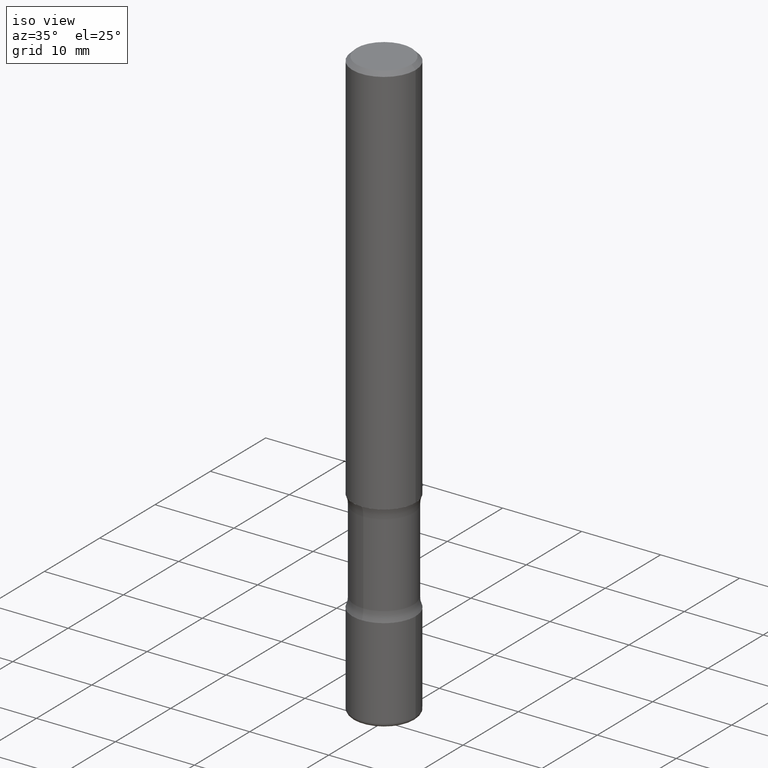
[diagram: clean part render]
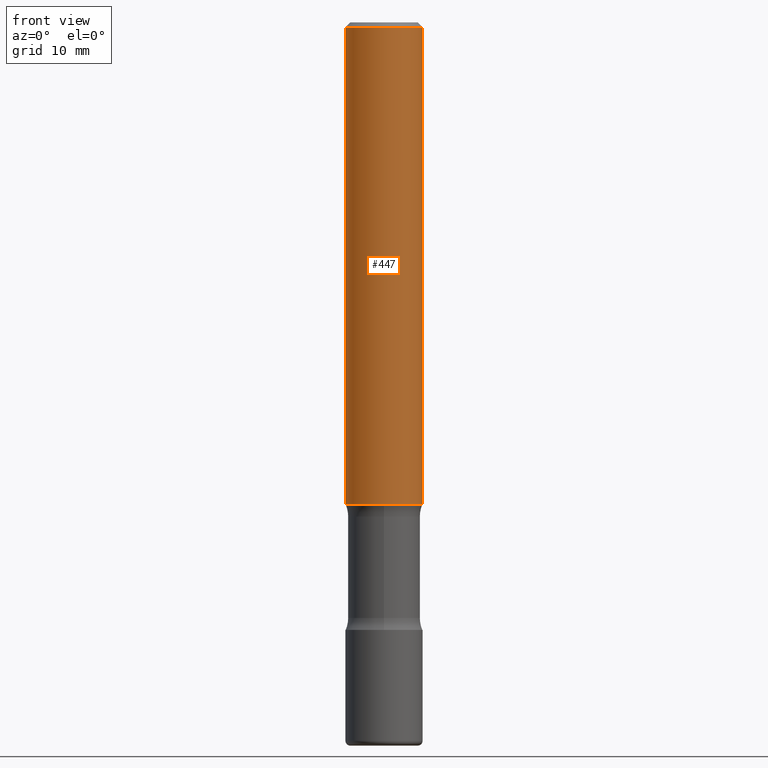
[diagram: tour spotlight — one face highlighted and labeled with its STEP entity id]
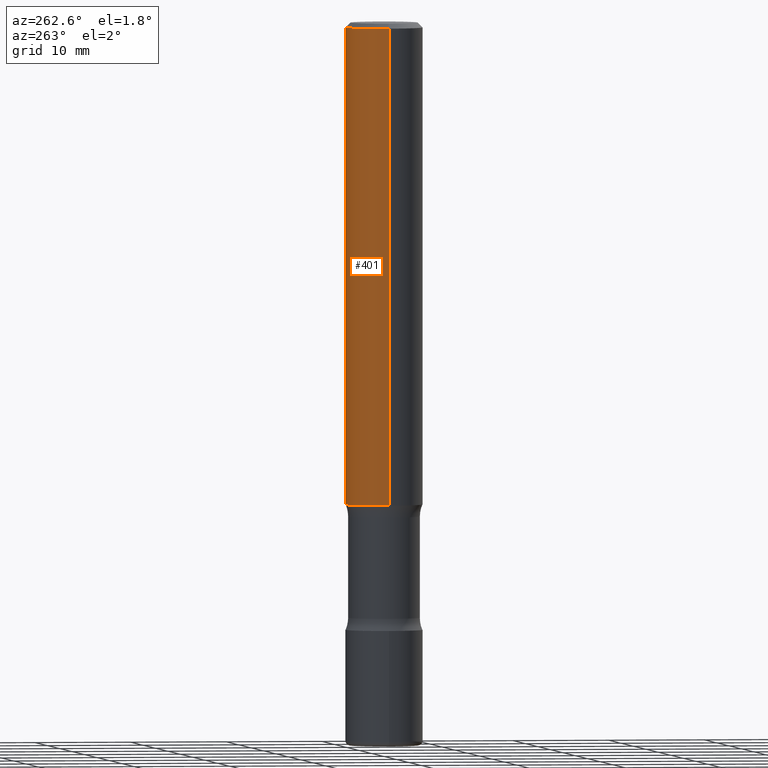
[diagram: tour spotlight — one face highlighted and labeled with its STEP entity id]
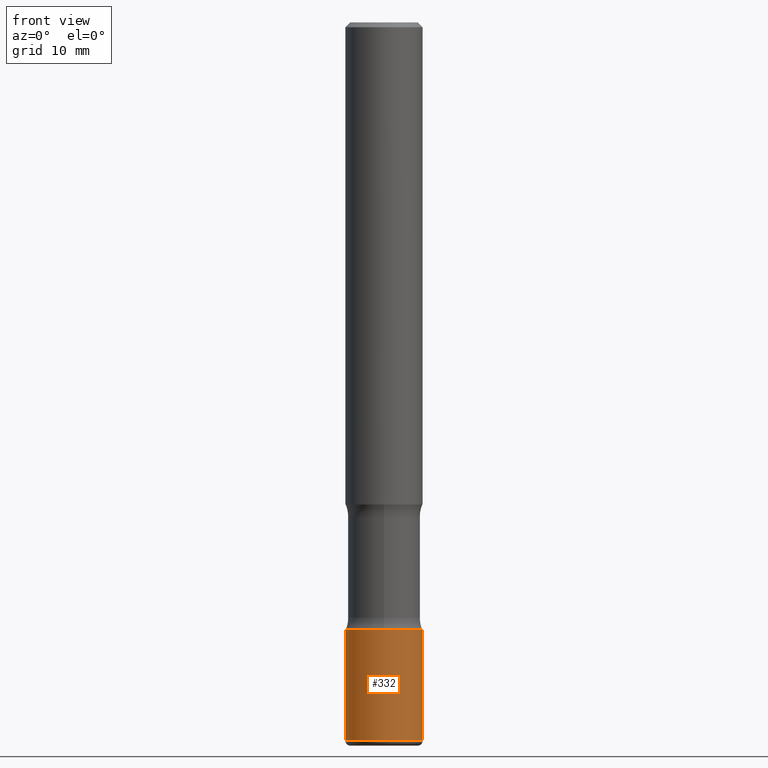
[diagram: tour spotlight — one face highlighted and labeled with its STEP entity id]
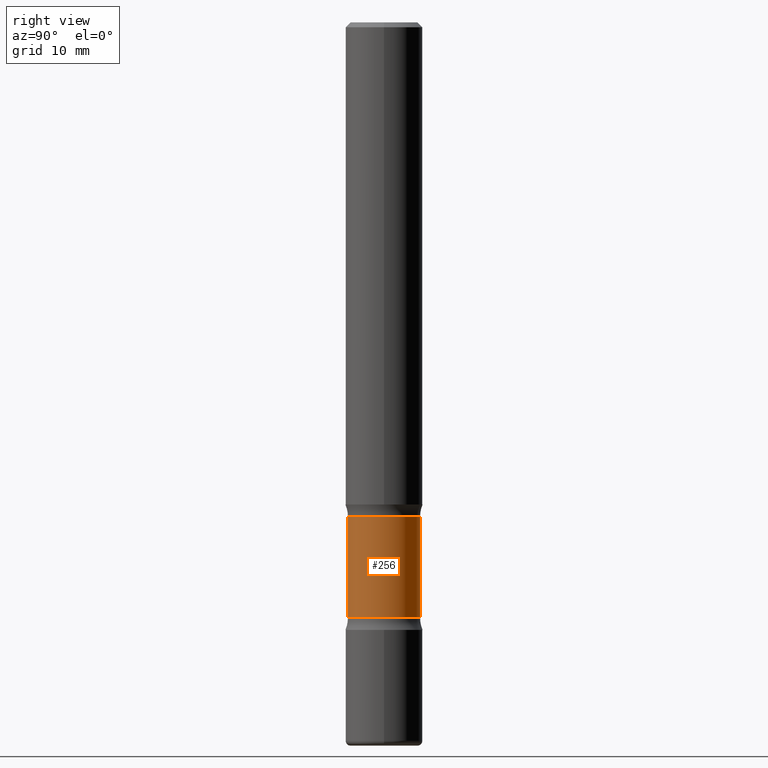
[diagram: tour spotlight — one face highlighted and labeled with its STEP entity id]
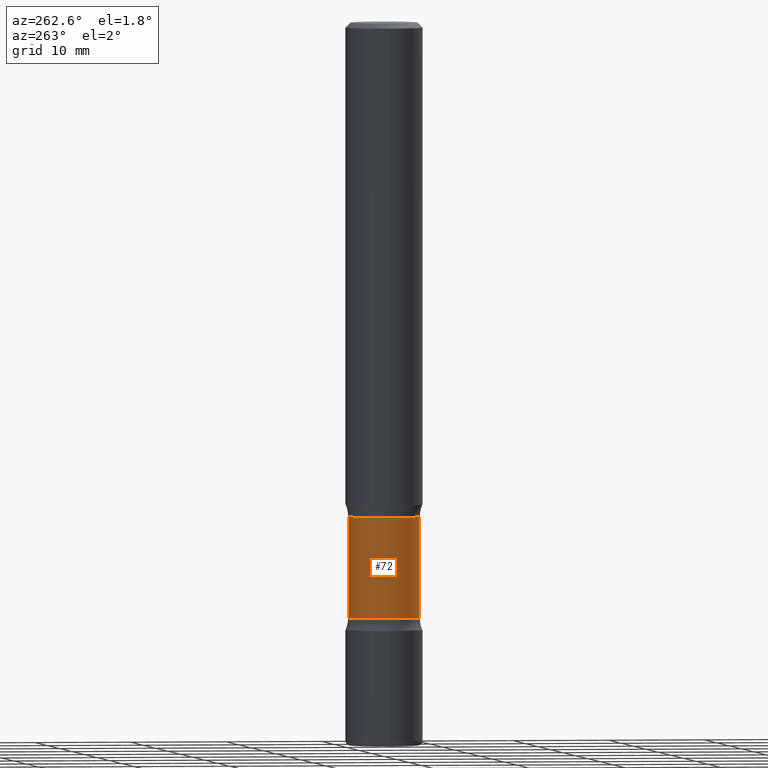
[diagram: tour spotlight — one face highlighted and labeled with its STEP entity id]
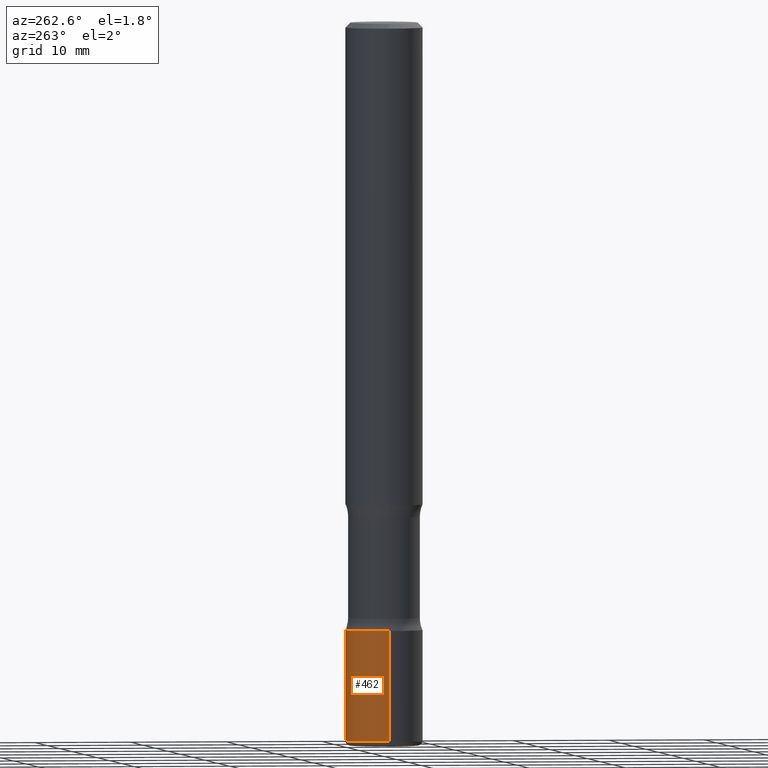
[diagram: tour spotlight — one face highlighted and labeled with its STEP entity id]
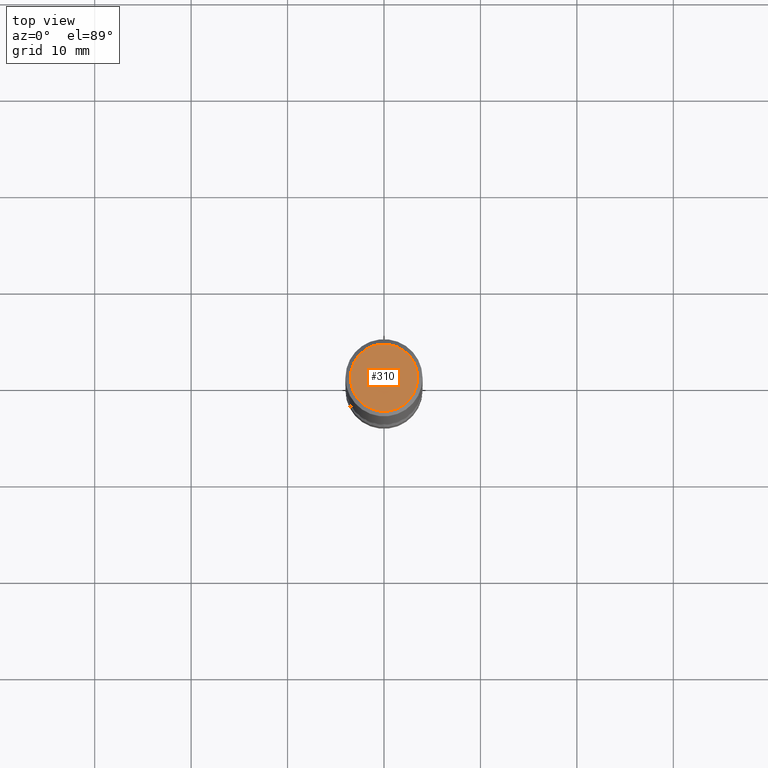
[diagram: tour spotlight — one face highlighted and labeled with its STEP entity id]
A machine part: a face-by-face anatomy tour. The part has 20 B-rep faces; the first image is the clean iso view, then the 7 largest visible faces are spotlighted one at a time (largest first), each with its STEP entity span.

Face 1 — front view, entity #447. In plain terms, the highlighted cylindrical surface (partial cylindrical patch) has radius 4.0005 mm, axis along (-0, 0, 1).
Definition (entity closure, byte-faithful):
#3 = ORIENTED_EDGE ( 'NONE', *, *, #345, .T. ) ;
#18 = ORIENTED_EDGE ( 'NONE', *, *, #22, .F. ) ;
#22 = EDGE_CURVE ( 'NONE', #390, #161, #194, .T. ) ;
#23 = ORIENTED_EDGE ( 'NONE', *, *, #426, .F. ) ;
#28 = VERTEX_POINT ( 'NONE', #61 ) ;
#31 = VECTOR ( 'NONE', #102, 39.37007874015748143 ) ;
#35 = CARTESIAN_POINT ( 'NONE',  ( -0.1574999999999999178, 1.029986994958723590E-15, -0.02000000000000000042 ) ) ;
#61 = CARTESIAN_POINT ( 'NONE',  ( 0.1574999999999999178, -1.150358061425878486E-15, -0.02000000000000000042 ) ) ;
#94 = EDGE_CURVE ( 'NONE', #98, #28, #182, .T. ) ;
#98 = VERTEX_POINT ( 'NONE', #392 ) ;
#102 = DIRECTION ( 'NONE',  ( -2.445468806185136877E-29, 3.491481338843145188E-15, 1.000000000000000000 ) ) ;
#128 = CARTESIAN_POINT ( 'NONE',  ( 4.890937612370273159E-31, -6.982962677686291609E-17, -0.02000000000000000042 ) ) ;
#135 = CYLINDRICAL_SURFACE ( 'NONE', #148, 0.1575000000000000289 ) ;
#147 = VECTOR ( 'NONE', #438, 39.37007874015748143 ) ;
#148 = AXIS2_PLACEMENT_3D ( 'NONE', #440, #230, #234 ) ;
#151 = DIRECTION ( 'NONE',  ( 1.000000000000000000, -6.982962677686267499E-15, 0.000000000000000000 ) ) ;
#161 = VERTEX_POINT ( 'NONE', #35 ) ;
#177 = FACE_OUTER_BOUND ( 'NONE', #302, .T. ) ;
#182 = LINE ( 'NONE', #490, #31 ) ;
#186 = CARTESIAN_POINT ( 'NONE',  ( -0.1575000000000000289, 1.119104808822157998E-15, -7.747322767151478386E-30 ) ) ;
#194 = LINE ( 'NONE', #186, #147 ) ;
#230 = DIRECTION ( 'NONE',  ( -2.445468806185136597E-29, 3.491481338843145583E-15, 1.000000000000000000 ) ) ;
#234 = DIRECTION ( 'NONE',  ( 1.000000000000000000, -6.982962677686267499E-15, 4.876176775795935232E-29 ) ) ;
#236 = ORIENTED_EDGE ( 'NONE', *, *, #94, .T. ) ;
#239 = CIRCLE ( 'NONE', #290, 0.1574999999999999178 ) ;
#290 = AXIS2_PLACEMENT_3D ( 'NONE', #128, #388, #520 ) ;
#302 = EDGE_LOOP ( 'NONE', ( #18, #3, #236, #23 ) ) ;
#345 = EDGE_CURVE ( 'NONE', #390, #98, #378, .T. ) ;
#353 = DIRECTION ( 'NONE',  ( -2.445468806185136597E-29, 3.491481338843145583E-15, 1.000000000000000000 ) ) ;
#364 = CARTESIAN_POINT ( 'NONE',  ( -0.1575000000000001676, -2.352300512322635166E-15, -1.968499999999999694 ) ) ;
#378 = CIRCLE ( 'NONE', #491, 0.1575000000000001676 ) ;
#388 = DIRECTION ( 'NONE',  ( -2.445468806185136597E-29, 3.491481338843145583E-15, 1.000000000000000000 ) ) ;
#390 = VERTEX_POINT ( 'NONE', #364 ) ;
#392 = CARTESIAN_POINT ( 'NONE',  ( 0.1575000000000001676, -7.972797637248319976E-15, -1.968499999999999694 ) ) ;
#426 = EDGE_CURVE ( 'NONE', #161, #28, #239, .T. ) ;
#438 = DIRECTION ( 'NONE',  ( -2.445468806185136877E-29, 3.491481338843145188E-15, 1.000000000000000000 ) ) ;
#440 = CARTESIAN_POINT ( 'NONE',  ( 0.000000000000000000, 0.000000000000000000, 0.000000000000000000 ) ) ;
#447 = ADVANCED_FACE ( 'NONE', ( #177 ), #135, .T. ) ;
#459 = CARTESIAN_POINT ( 'NONE',  ( 4.813905344975440714E-29, -6.872981015512730918E-15, -1.968499999999999694 ) ) ;
#490 = CARTESIAN_POINT ( 'NONE',  ( 0.1575000000000000289, -1.099816621735587283E-15, 7.679978421878599434E-30 ) ) ;
#491 = AXIS2_PLACEMENT_3D ( 'NONE', #459, #353, #151 ) ;
#520 = DIRECTION ( 'NONE',  ( 1.000000000000000000, -6.982962677686266711E-15, 0.000000000000000000 ) ) ;

Face 2 — auxiliary view, entity #401. In plain terms, the highlighted cylindrical surface (partial cylindrical patch) has radius 4.0005 mm, axis along (-0, 0, 1).
Definition (entity closure, byte-faithful):
#22 = EDGE_CURVE ( 'NONE', #390, #161, #194, .T. ) ;
#24 = CIRCLE ( 'NONE', #79, 0.1575000000000001676 ) ;
#27 = DIRECTION ( 'NONE',  ( 1.000000000000000000, -6.982962677686267499E-15, 0.000000000000000000 ) ) ;
#28 = VERTEX_POINT ( 'NONE', #61 ) ;
#31 = VECTOR ( 'NONE', #102, 39.37007874015748143 ) ;
#35 = CARTESIAN_POINT ( 'NONE',  ( -0.1574999999999999178, 1.029986994958723590E-15, -0.02000000000000000042 ) ) ;
#49 = EDGE_LOOP ( 'NONE', ( #476, #202, #414, #439 ) ) ;
#61 = CARTESIAN_POINT ( 'NONE',  ( 0.1574999999999999178, -1.150358061425878486E-15, -0.02000000000000000042 ) ) ;
#66 = CIRCLE ( 'NONE', #336, 0.1574999999999999178 ) ;
#75 = DIRECTION ( 'NONE',  ( -2.445468806185136597E-29, 3.491481338843145583E-15, 1.000000000000000000 ) ) ;
#79 = AXIS2_PLACEMENT_3D ( 'NONE', #142, #488, #27 ) ;
#94 = EDGE_CURVE ( 'NONE', #98, #28, #182, .T. ) ;
#98 = VERTEX_POINT ( 'NONE', #392 ) ;
#102 = DIRECTION ( 'NONE',  ( -2.445468806185136877E-29, 3.491481338843145188E-15, 1.000000000000000000 ) ) ;
#113 = DIRECTION ( 'NONE',  ( -2.445468806185136597E-29, 3.491481338843145583E-15, 1.000000000000000000 ) ) ;
#142 = CARTESIAN_POINT ( 'NONE',  ( 4.813905344975440714E-29, -6.872981015512730918E-15, -1.968499999999999694 ) ) ;
#147 = VECTOR ( 'NONE', #438, 39.37007874015748143 ) ;
#161 = VERTEX_POINT ( 'NONE', #35 ) ;
#182 = LINE ( 'NONE', #490, #31 ) ;
#186 = CARTESIAN_POINT ( 'NONE',  ( -0.1575000000000000289, 1.119104808822157998E-15, -7.747322767151478386E-30 ) ) ;
#194 = LINE ( 'NONE', #186, #147 ) ;
#202 = ORIENTED_EDGE ( 'NONE', *, *, #22, .T. ) ;
#280 = DIRECTION ( 'NONE',  ( 1.000000000000000000, -6.982962677686266711E-15, 0.000000000000000000 ) ) ;
#334 = EDGE_CURVE ( 'NONE', #28, #161, #66, .T. ) ;
#336 = AXIS2_PLACEMENT_3D ( 'NONE', #535, #113, #280 ) ;
#364 = CARTESIAN_POINT ( 'NONE',  ( -0.1575000000000001676, -2.352300512322635166E-15, -1.968499999999999694 ) ) ;
#369 = AXIS2_PLACEMENT_3D ( 'NONE', #380, #75, #430 ) ;
#372 = EDGE_CURVE ( 'NONE', #98, #390, #24, .T. ) ;
#380 = CARTESIAN_POINT ( 'NONE',  ( 0.000000000000000000, 0.000000000000000000, 0.000000000000000000 ) ) ;
#390 = VERTEX_POINT ( 'NONE', #364 ) ;
#392 = CARTESIAN_POINT ( 'NONE',  ( 0.1575000000000001676, -7.972797637248319976E-15, -1.968499999999999694 ) ) ;
#401 = ADVANCED_FACE ( 'NONE', ( #418 ), #554, .T. ) ;
#414 = ORIENTED_EDGE ( 'NONE', *, *, #334, .F. ) ;
#418 = FACE_OUTER_BOUND ( 'NONE', #49, .T. ) ;
#430 = DIRECTION ( 'NONE',  ( 1.000000000000000000, -6.982962677686267499E-15, 4.876176775795935232E-29 ) ) ;
#438 = DIRECTION ( 'NONE',  ( -2.445468806185136877E-29, 3.491481338843145188E-15, 1.000000000000000000 ) ) ;
#439 = ORIENTED_EDGE ( 'NONE', *, *, #94, .F. ) ;
#476 = ORIENTED_EDGE ( 'NONE', *, *, #372, .T. ) ;
#488 = DIRECTION ( 'NONE',  ( -2.445468806185136597E-29, 3.491481338843145583E-15, 1.000000000000000000 ) ) ;
#490 = CARTESIAN_POINT ( 'NONE',  ( 0.1575000000000000289, -1.099816621735587283E-15, 7.679978421878599434E-30 ) ) ;
#535 = CARTESIAN_POINT ( 'NONE',  ( 4.890937612370273159E-31, -6.982962677686291609E-17, -0.02000000000000000042 ) ) ;
#554 = CYLINDRICAL_SURFACE ( 'NONE', #369, 0.1575000000000000289 ) ;

Face 3 — front view, entity #332. In plain terms, the highlighted cylindrical surface (partial cylindrical patch) has radius 4.0005 mm, axis along (-0, 0, 1).
Definition (entity closure, byte-faithful):
#13 = EDGE_CURVE ( 'NONE', #525, #466, #244, .T. ) ;
#16 = ORIENTED_EDGE ( 'NONE', *, *, #13, .T. ) ;
#20 = VECTOR ( 'NONE', #104, 39.37007874015748143 ) ;
#25 = DIRECTION ( 'NONE',  ( 1.000000000000000000, -6.982962677686265922E-15, 4.876176775795935232E-29 ) ) ;
#38 = EDGE_CURVE ( 'NONE', #525, #215, #58, .T. ) ;
#58 = LINE ( 'NONE', #131, #424 ) ;
#104 = DIRECTION ( 'NONE',  ( -2.445468806185136877E-29, 3.491481338843145188E-15, 1.000000000000000000 ) ) ;
#117 = CARTESIAN_POINT ( 'NONE',  ( 0.1575000000000001399, -1.099816621735587875E-15, 7.679978421878605039E-30 ) ) ;
#131 = CARTESIAN_POINT ( 'NONE',  ( -0.1575000000000001399, 1.119104808822158787E-15, -7.747322767151482590E-30 ) ) ;
#138 = ORIENTED_EDGE ( 'NONE', *, *, #301, .T. ) ;
#140 = EDGE_LOOP ( 'NONE', ( #458, #16, #138, #278 ) ) ;
#191 = DIRECTION ( 'NONE',  ( -2.445468806185136597E-29, 3.491481338843145583E-15, 1.000000000000000000 ) ) ;
#211 = CARTESIAN_POINT ( 'NONE',  ( -0.1575000000000000844, -9.121759106138672895E-15, -2.933100000000000041 ) ) ;
#215 = VERTEX_POINT ( 'NONE', #376 ) ;
#226 = DIRECTION ( 'NONE',  ( 1.000000000000000000, -6.982962677686268288E-15, 0.000000000000000000 ) ) ;
#231 = CARTESIAN_POINT ( 'NONE',  ( 7.172804555421624566E-29, -1.024086391496083050E-14, -2.933100000000000041 ) ) ;
#244 = CIRCLE ( 'NONE', #303, 0.1575000000000001399 ) ;
#248 = CIRCLE ( 'NONE', #434, 0.1575000000000001399 ) ;
#278 = ORIENTED_EDGE ( 'NONE', *, *, #442, .F. ) ;
#301 = EDGE_CURVE ( 'NONE', #466, #514, #493, .T. ) ;
#303 = AXIS2_PLACEMENT_3D ( 'NONE', #231, #532, #322 ) ;
#321 = DIRECTION ( 'NONE',  ( -2.445468806185136597E-29, 3.491481338843145583E-15, 1.000000000000000000 ) ) ;
#322 = DIRECTION ( 'NONE',  ( 1.000000000000000000, -6.982962677686268288E-15, 0.000000000000000000 ) ) ;
#332 = ADVANCED_FACE ( 'NONE', ( #496 ), #403, .T. ) ;
#376 = CARTESIAN_POINT ( 'NONE',  ( -0.1575000000000001399, -8.331462305091523914E-15, -2.480399999999999494 ) ) ;
#403 = CYLINDRICAL_SURFACE ( 'NONE', #552, 0.1575000000000001399 ) ;
#424 = VECTOR ( 'NONE', #486, 39.37007874015748143 ) ;
#434 = AXIS2_PLACEMENT_3D ( 'NONE', #451, #321, #226 ) ;
#442 = EDGE_CURVE ( 'NONE', #215, #514, #248, .T. ) ;
#444 = CARTESIAN_POINT ( 'NONE',  ( 0.1575000000000000844, -1.134068053669641877E-14, -2.933100000000000041 ) ) ;
#450 = CARTESIAN_POINT ( 'NONE',  ( 0.000000000000000000, 0.000000000000000000, 0.000000000000000000 ) ) ;
#451 = CARTESIAN_POINT ( 'NONE',  ( 6.065740826861612418E-29, -8.660270312866537270E-15, -2.480399999999999494 ) ) ;
#458 = ORIENTED_EDGE ( 'NONE', *, *, #38, .F. ) ;
#466 = VERTEX_POINT ( 'NONE', #444 ) ;
#486 = DIRECTION ( 'NONE',  ( -2.445468806185136877E-29, 3.491481338843145188E-15, 1.000000000000000000 ) ) ;
#493 = LINE ( 'NONE', #117, #20 ) ;
#496 = FACE_OUTER_BOUND ( 'NONE', #140, .T. ) ;
#501 = CARTESIAN_POINT ( 'NONE',  ( 0.1575000000000001399, -9.760086934602125539E-15, -2.480399999999999494 ) ) ;
#514 = VERTEX_POINT ( 'NONE', #501 ) ;
#525 = VERTEX_POINT ( 'NONE', #211 ) ;
#532 = DIRECTION ( 'NONE',  ( -2.445468806185136597E-29, 3.491481338843145583E-15, 1.000000000000000000 ) ) ;
#552 = AXIS2_PLACEMENT_3D ( 'NONE', #450, #191, #25 ) ;

Face 4 — right view, entity #256. In plain terms, the highlighted cylindrical surface (edge-blend (fillet) strip) has radius 3.7427 mm, axis along (0, -0, -1).
Definition (entity closure, byte-faithful):
#33 = VERTEX_POINT ( 'NONE', #137 ) ;
#39 = CARTESIAN_POINT ( 'NONE',  ( 7.234878300801473340E-29, -1.028974335613649852E-14, -2.952799999999999869 ) ) ;
#46 = EDGE_CURVE ( 'NONE', #464, #133, #264, .T. ) ;
#59 = DIRECTION ( 'NONE',  ( 2.474888810202925163E-29, -3.449350218607032856E-15, -1.000000000000000000 ) ) ;
#63 = DIRECTION ( 'NONE',  ( 2.474888810202925163E-29, -3.449350218607033250E-15, -1.000000000000000000 ) ) ;
#65 = CARTESIAN_POINT ( 'NONE',  ( 1.028939550557143658E-15, 0.1473499999999897114, -2.952800000000000313 ) ) ;
#133 = VERTEX_POINT ( 'NONE', #261 ) ;
#137 = CARTESIAN_POINT ( 'NONE',  ( 1.028939550557130839E-15, 0.1473499999999915433, -2.431059575397043648 ) ) ;
#146 = LINE ( 'NONE', #65, #543 ) ;
#155 = CARTESIAN_POINT ( 'NONE',  ( 1.028939550557120386E-15, 0.1473499999999929033, -2.017840424602956872 ) ) ;
#180 = VECTOR ( 'NONE', #304, 39.37007874015748143 ) ;
#188 = DIRECTION ( 'NONE',  ( 6.982962677686265133E-15, 1.000000000000000000, -3.707971487837479733E-15 ) ) ;
#190 = ORIENTED_EDGE ( 'NONE', *, *, #46, .T. ) ;
#209 = EDGE_CURVE ( 'NONE', #312, #464, #359, .T. ) ;
#233 = CARTESIAN_POINT ( 'NONE',  ( 5.943628762121094077E-29, -8.490077908476165751E-15, -2.431059575397043204 ) ) ;
#246 = CYLINDRICAL_SURFACE ( 'NONE', #254, 0.1473500000000000087 ) ;
#254 = AXIS2_PLACEMENT_3D ( 'NONE', #39, #63, #188 ) ;
#256 = ADVANCED_FACE ( 'NONE', ( #468 ), #246, .T. ) ;
#261 = CARTESIAN_POINT ( 'NONE',  ( -1.045711407310266063E-15, -0.1473500000000085020, -2.431059575397042760 ) ) ;
#264 = LINE ( 'NONE', #452, #180 ) ;
#268 = CARTESIAN_POINT ( 'NONE',  ( -1.045711407310277305E-15, -0.1473500000000070587, -2.017840424602955984 ) ) ;
#270 = ORIENTED_EDGE ( 'NONE', *, *, #286, .F. ) ;
#281 = DIRECTION ( 'NONE',  ( 2.474888810202925163E-29, -3.449350218607033250E-15, -1.000000000000000000 ) ) ;
#283 = DIRECTION ( 'NONE',  ( 6.982962677686265133E-15, 1.000000000000000000, -3.707971487837480522E-15 ) ) ;
#286 = EDGE_CURVE ( 'NONE', #33, #133, #455, .T. ) ;
#287 = EDGE_CURVE ( 'NONE', #312, #33, #146, .T. ) ;
#304 = DIRECTION ( 'NONE',  ( 2.474888810202925163E-29, -3.449350218607032856E-15, -1.000000000000000000 ) ) ;
#312 = VERTEX_POINT ( 'NONE', #155 ) ;
#313 = DIRECTION ( 'NONE',  ( 2.474888810202925163E-29, -3.449350218607033250E-15, -1.000000000000000000 ) ) ;
#317 = ORIENTED_EDGE ( 'NONE', *, *, #287, .F. ) ;
#326 = DIRECTION ( 'NONE',  ( 6.982962677686266711E-15, 1.000000000000000000, -3.707971487837479733E-15 ) ) ;
#359 = CIRCLE ( 'NONE', #368, 0.1473499999999999810 ) ;
#368 = AXIS2_PLACEMENT_3D ( 'NONE', #500, #281, #283 ) ;
#405 = AXIS2_PLACEMENT_3D ( 'NONE', #233, #313, #326 ) ;
#452 = CARTESIAN_POINT ( 'NONE',  ( -1.010894379971562693E-15, -0.1473500000000103061, -2.952799999999998981 ) ) ;
#455 = CIRCLE ( 'NONE', #405, 0.1473500000000000087 ) ;
#464 = VERTEX_POINT ( 'NONE', #268 ) ;
#468 = FACE_OUTER_BOUND ( 'NONE', #492, .T. ) ;
#492 = EDGE_LOOP ( 'NONE', ( #515, #190, #270, #317 ) ) ;
#500 = CARTESIAN_POINT ( 'NONE',  ( 4.920957309659253149E-29, -7.064740340351969652E-15, -2.017840424602956428 ) ) ;
#515 = ORIENTED_EDGE ( 'NONE', *, *, #209, .T. ) ;
#543 = VECTOR ( 'NONE', #59, 39.37007874015748143 ) ;

Face 5 — auxiliary view, entity #72. In plain terms, the highlighted cylindrical surface (edge-blend (fillet) strip) has radius 3.7427 mm, axis along (0, -0, -1).
Definition (entity closure, byte-faithful):
#6 = DIRECTION ( 'NONE',  ( 2.474888810202925163E-29, -3.449350218607033250E-15, -1.000000000000000000 ) ) ;
#17 = EDGE_LOOP ( 'NONE', ( #189, #435, #331, #509 ) ) ;
#33 = VERTEX_POINT ( 'NONE', #137 ) ;
#46 = EDGE_CURVE ( 'NONE', #464, #133, #264, .T. ) ;
#59 = DIRECTION ( 'NONE',  ( 2.474888810202925163E-29, -3.449350218607032856E-15, -1.000000000000000000 ) ) ;
#65 = CARTESIAN_POINT ( 'NONE',  ( 1.028939550557143658E-15, 0.1473499999999897114, -2.952800000000000313 ) ) ;
#69 = DIRECTION ( 'NONE',  ( 2.474888810202925163E-29, -3.449350218607033250E-15, -1.000000000000000000 ) ) ;
#72 = ADVANCED_FACE ( 'NONE', ( #352 ), #389, .T. ) ;
#83 = CIRCLE ( 'NONE', #167, 0.1473499999999999810 ) ;
#89 = AXIS2_PLACEMENT_3D ( 'NONE', #529, #6, #400 ) ;
#96 = EDGE_CURVE ( 'NONE', #464, #312, #83, .T. ) ;
#133 = VERTEX_POINT ( 'NONE', #261 ) ;
#134 = CIRCLE ( 'NONE', #533, 0.1473500000000000087 ) ;
#137 = CARTESIAN_POINT ( 'NONE',  ( 1.028939550557130839E-15, 0.1473499999999915433, -2.431059575397043648 ) ) ;
#146 = LINE ( 'NONE', #65, #543 ) ;
#149 = CARTESIAN_POINT ( 'NONE',  ( 4.920957309659253149E-29, -7.064740340351969652E-15, -2.017840424602956428 ) ) ;
#155 = CARTESIAN_POINT ( 'NONE',  ( 1.028939550557120386E-15, 0.1473499999999929033, -2.017840424602956872 ) ) ;
#167 = AXIS2_PLACEMENT_3D ( 'NONE', #149, #325, #295 ) ;
#180 = VECTOR ( 'NONE', #304, 39.37007874015748143 ) ;
#189 = ORIENTED_EDGE ( 'NONE', *, *, #46, .F. ) ;
#261 = CARTESIAN_POINT ( 'NONE',  ( -1.045711407310266063E-15, -0.1473500000000085020, -2.431059575397042760 ) ) ;
#264 = LINE ( 'NONE', #452, #180 ) ;
#268 = CARTESIAN_POINT ( 'NONE',  ( -1.045711407310277305E-15, -0.1473500000000070587, -2.017840424602955984 ) ) ;
#282 = CARTESIAN_POINT ( 'NONE',  ( 5.943628762121094077E-29, -8.490077908476165751E-15, -2.431059575397043204 ) ) ;
#287 = EDGE_CURVE ( 'NONE', #312, #33, #146, .T. ) ;
#295 = DIRECTION ( 'NONE',  ( 6.982962677686265133E-15, 1.000000000000000000, -3.707971487837480522E-15 ) ) ;
#304 = DIRECTION ( 'NONE',  ( 2.474888810202925163E-29, -3.449350218607032856E-15, -1.000000000000000000 ) ) ;
#312 = VERTEX_POINT ( 'NONE', #155 ) ;
#325 = DIRECTION ( 'NONE',  ( 2.474888810202925163E-29, -3.449350218607033250E-15, -1.000000000000000000 ) ) ;
#331 = ORIENTED_EDGE ( 'NONE', *, *, #287, .T. ) ;
#347 = EDGE_CURVE ( 'NONE', #133, #33, #134, .T. ) ;
#352 = FACE_OUTER_BOUND ( 'NONE', #17, .T. ) ;
#389 = CYLINDRICAL_SURFACE ( 'NONE', #89, 0.1473500000000000087 ) ;
#400 = DIRECTION ( 'NONE',  ( 6.982962677686265133E-15, 1.000000000000000000, -3.707971487837479733E-15 ) ) ;
#435 = ORIENTED_EDGE ( 'NONE', *, *, #96, .T. ) ;
#452 = CARTESIAN_POINT ( 'NONE',  ( -1.010894379971562693E-15, -0.1473500000000103061, -2.952799999999998981 ) ) ;
#464 = VERTEX_POINT ( 'NONE', #268 ) ;
#509 = ORIENTED_EDGE ( 'NONE', *, *, #347, .F. ) ;
#528 = DIRECTION ( 'NONE',  ( 6.982962677686266711E-15, 1.000000000000000000, -3.707971487837479733E-15 ) ) ;
#529 = CARTESIAN_POINT ( 'NONE',  ( 7.234878300801473340E-29, -1.028974335613649852E-14, -2.952799999999999869 ) ) ;
#533 = AXIS2_PLACEMENT_3D ( 'NONE', #282, #69, #528 ) ;
#543 = VECTOR ( 'NONE', #59, 39.37007874015748143 ) ;

Face 6 — auxiliary view, entity #462. In plain terms, the highlighted cylindrical surface (partial cylindrical patch) has radius 4.0005 mm, axis along (-0, 0, 1).
Definition (entity closure, byte-faithful):
#20 = VECTOR ( 'NONE', #104, 39.37007874015748143 ) ;
#21 = FACE_OUTER_BOUND ( 'NONE', #311, .T. ) ;
#38 = EDGE_CURVE ( 'NONE', #525, #215, #58, .T. ) ;
#53 = DIRECTION ( 'NONE',  ( -2.445468806185136597E-29, 3.491481338843145583E-15, 1.000000000000000000 ) ) ;
#58 = LINE ( 'NONE', #131, #424 ) ;
#78 = AXIS2_PLACEMENT_3D ( 'NONE', #367, #163, #157 ) ;
#93 = DIRECTION ( 'NONE',  ( 1.000000000000000000, -6.982962677686268288E-15, 0.000000000000000000 ) ) ;
#104 = DIRECTION ( 'NONE',  ( -2.445468806185136877E-29, 3.491481338843145188E-15, 1.000000000000000000 ) ) ;
#111 = CYLINDRICAL_SURFACE ( 'NONE', #337, 0.1575000000000001399 ) ;
#117 = CARTESIAN_POINT ( 'NONE',  ( 0.1575000000000001399, -1.099816621735587875E-15, 7.679978421878605039E-30 ) ) ;
#131 = CARTESIAN_POINT ( 'NONE',  ( -0.1575000000000001399, 1.119104808822158787E-15, -7.747322767151482590E-30 ) ) ;
#152 = CARTESIAN_POINT ( 'NONE',  ( 0.000000000000000000, 0.000000000000000000, 0.000000000000000000 ) ) ;
#157 = DIRECTION ( 'NONE',  ( 1.000000000000000000, -6.982962677686268288E-15, 0.000000000000000000 ) ) ;
#163 = DIRECTION ( 'NONE',  ( -2.445468806185136597E-29, 3.491481338843145583E-15, 1.000000000000000000 ) ) ;
#179 = ORIENTED_EDGE ( 'NONE', *, *, #301, .F. ) ;
#198 = EDGE_CURVE ( 'NONE', #466, #525, #512, .T. ) ;
#211 = CARTESIAN_POINT ( 'NONE',  ( -0.1575000000000000844, -9.121759106138672895E-15, -2.933100000000000041 ) ) ;
#215 = VERTEX_POINT ( 'NONE', #376 ) ;
#229 = DIRECTION ( 'NONE',  ( 1.000000000000000000, -6.982962677686265922E-15, 4.876176775795935232E-29 ) ) ;
#263 = DIRECTION ( 'NONE',  ( -2.445468806185136597E-29, 3.491481338843145583E-15, 1.000000000000000000 ) ) ;
#269 = ORIENTED_EDGE ( 'NONE', *, *, #198, .T. ) ;
#277 = CARTESIAN_POINT ( 'NONE',  ( 6.065740826861612418E-29, -8.660270312866537270E-15, -2.480399999999999494 ) ) ;
#301 = EDGE_CURVE ( 'NONE', #466, #514, #493, .T. ) ;
#307 = ORIENTED_EDGE ( 'NONE', *, *, #485, .F. ) ;
#311 = EDGE_LOOP ( 'NONE', ( #269, #472, #307, #179 ) ) ;
#337 = AXIS2_PLACEMENT_3D ( 'NONE', #152, #263, #229 ) ;
#367 = CARTESIAN_POINT ( 'NONE',  ( 7.172804555421624566E-29, -1.024086391496083050E-14, -2.933100000000000041 ) ) ;
#376 = CARTESIAN_POINT ( 'NONE',  ( -0.1575000000000001399, -8.331462305091523914E-15, -2.480399999999999494 ) ) ;
#416 = CIRCLE ( 'NONE', #457, 0.1575000000000001399 ) ;
#424 = VECTOR ( 'NONE', #486, 39.37007874015748143 ) ;
#444 = CARTESIAN_POINT ( 'NONE',  ( 0.1575000000000000844, -1.134068053669641877E-14, -2.933100000000000041 ) ) ;
#457 = AXIS2_PLACEMENT_3D ( 'NONE', #277, #53, #93 ) ;
#462 = ADVANCED_FACE ( 'NONE', ( #21 ), #111, .T. ) ;
#466 = VERTEX_POINT ( 'NONE', #444 ) ;
#472 = ORIENTED_EDGE ( 'NONE', *, *, #38, .T. ) ;
#485 = EDGE_CURVE ( 'NONE', #514, #215, #416, .T. ) ;
#486 = DIRECTION ( 'NONE',  ( -2.445468806185136877E-29, 3.491481338843145188E-15, 1.000000000000000000 ) ) ;
#493 = LINE ( 'NONE', #117, #20 ) ;
#501 = CARTESIAN_POINT ( 'NONE',  ( 0.1575000000000001399, -9.760086934602125539E-15, -2.480399999999999494 ) ) ;
#512 = CIRCLE ( 'NONE', #78, 0.1575000000000001399 ) ;
#514 = VERTEX_POINT ( 'NONE', #501 ) ;
#525 = VERTEX_POINT ( 'NONE', #211 ) ;

Face 7 — top view, entity #310. In plain terms, the highlighted planar face has unit normal (0, -0, -1).
Definition (entity closure, byte-faithful):
#11 = CARTESIAN_POINT ( 'NONE',  ( 0.1374999999999999278, -1.046838268059731900E-15, 4.268512490107428597E-18 ) ) ;
#62 = VERTEX_POINT ( 'NONE', #11 ) ;
#68 = CARTESIAN_POINT ( 'NONE',  ( -1.043851414335219820E-46, 1.490343170380447200E-32, 4.268512490100411279E-18 ) ) ;
#154 = DIRECTION ( 'NONE',  ( -1.000000000000000000, 6.982962677686265922E-15, -4.876176775795935793E-29 ) ) ;
#184 = PLANE ( 'NONE',  #279 ) ;
#195 = VERTEX_POINT ( 'NONE', #199 ) ;
#199 = CARTESIAN_POINT ( 'NONE',  ( -0.1374999999999999278, 9.950721815702923357E-16, 4.268512490093574228E-18 ) ) ;
#203 = CIRCLE ( 'NONE', #342, 0.1374999999999999278 ) ;
#240 = CARTESIAN_POINT ( 'NONE',  ( 9.601573681818610811E-16, 0.1374999999999999278, -4.779444278458821021E-16 ) ) ;
#241 = ORIENTED_EDGE ( 'NONE', *, *, #421, .T. ) ;
#262 = EDGE_CURVE ( 'NONE', #195, #62, #203, .T. ) ;
#267 = DIRECTION ( 'NONE',  ( -2.445468806185136597E-29, 3.491481338843145583E-15, 1.000000000000000000 ) ) ;
#271 = FACE_OUTER_BOUND ( 'NONE', #448, .T. ) ;
#279 = AXIS2_PLACEMENT_3D ( 'NONE', #240, #446, #154 ) ;
#310 = ADVANCED_FACE ( 'NONE', ( #271 ), #184, .F. ) ;
#318 = CIRCLE ( 'NONE', #379, 0.1374999999999999278 ) ;
#342 = AXIS2_PLACEMENT_3D ( 'NONE', #356, #267, #454 ) ;
#356 = CARTESIAN_POINT ( 'NONE',  ( -1.043851414335219820E-46, 1.490343170380447200E-32, 4.268512490100411279E-18 ) ) ;
#358 = DIRECTION ( 'NONE',  ( -2.445468806185136597E-29, 3.491481338843145583E-15, 1.000000000000000000 ) ) ;
#379 = AXIS2_PLACEMENT_3D ( 'NONE', #68, #358, #538 ) ;
#421 = EDGE_CURVE ( 'NONE', #62, #195, #318, .T. ) ;
#446 = DIRECTION ( 'NONE',  ( 2.438088387897960049E-29, -3.491481338843145188E-15, -1.000000000000000000 ) ) ;
#448 = EDGE_LOOP ( 'NONE', ( #449, #241 ) ) ;
#449 = ORIENTED_EDGE ( 'NONE', *, *, #262, .T. ) ;
#454 = DIRECTION ( 'NONE',  ( 1.000000000000000000, -6.982962677686265922E-15, 4.876173381029102845E-29 ) ) ;
#538 = DIRECTION ( 'NONE',  ( 1.000000000000000000, -6.982962677686265922E-15, 4.876173381029102845E-29 ) ) ;